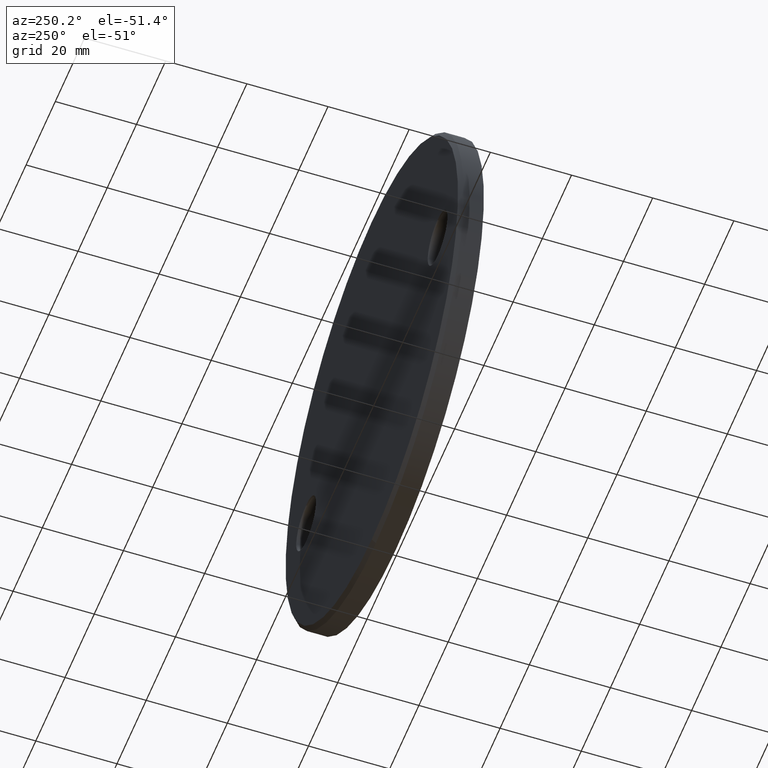
[diagram: clean part render]
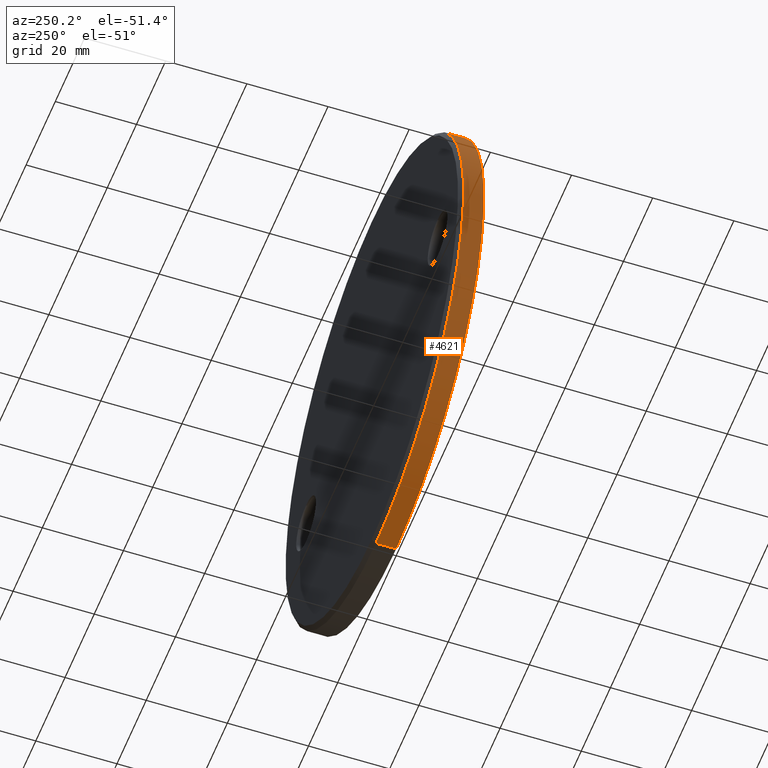
[diagram: same view with one face highlighted and labeled with its STEP entity id]
A machine part, auxiliary view. The second image highlights one B-rep face of the part: STEP entity #4621.
In plain terms, the highlighted cylindrical surface (partial cylindrical patch) has radius 60 mm, axis along (-0, -1, -0).
Its self-contained STEP definition (entity closure, byte-faithful):
#123 = ORIENTED_EDGE ( 'NONE', *, *, #4587, .T. ) ;
#803 = DIRECTION ( 'NONE',  ( -0.000000000000000000, -1.000000000000000000, -0.000000000000000000 ) ) ;
#856 = DIRECTION ( 'NONE',  ( 0.000000000000000000, 0.000000000000000000, 1.000000000000000000 ) ) ;
#872 = CARTESIAN_POINT ( 'NONE',  ( 7.347880794884118356E-15, 0.000000000000000000, 60.00000000000000000 ) ) ;
#1559 = EDGE_LOOP ( 'NONE', ( #1956, #123, #7882, #12647 ) ) ;
#1712 = LINE ( 'NONE', #13742, #7545 ) ;
#1956 = ORIENTED_EDGE ( 'NONE', *, *, #13268, .F. ) ;
#2452 = CARTESIAN_POINT ( 'NONE',  ( 7.347880794884118356E-15, 4.999999999999971578, 60.00000000000000000 ) ) ;
#2843 = DIRECTION ( 'NONE',  ( 0.000000000000000000, 0.000000000000000000, -1.000000000000000000 ) ) ;
#3694 = CARTESIAN_POINT ( 'NONE',  ( 0.000000000000000000, 6.000000000000000000, -60.00000000000000000 ) ) ;
#4191 = VERTEX_POINT ( 'NONE', #12299 ) ;
#4497 = VERTEX_POINT ( 'NONE', #2452 ) ;
#4587 = EDGE_CURVE ( 'NONE', #4497, #5758, #11359, .T. ) ;
#4621 = ADVANCED_FACE ( 'NONE', ( #8539 ), #6362, .T. ) ;
#4935 = CARTESIAN_POINT ( 'NONE',  ( 0.000000000000000000, 0.000000000000000000, 0.000000000000000000 ) ) ;
#5758 = VERTEX_POINT ( 'NONE', #13012 ) ;
#5859 = AXIS2_PLACEMENT_3D ( 'NONE', #4935, #13470, #5939 ) ;
#5939 = DIRECTION ( 'NONE',  ( 0.000000000000000000, 0.000000000000000000, 1.000000000000000000 ) ) ;
#6362 = CYLINDRICAL_SURFACE ( 'NONE', #13190, 60.00000000000000000 ) ;
#6893 = LINE ( 'NONE', #3694, #10411 ) ;
#7080 = DIRECTION ( 'NONE',  ( 0.000000000000000000, -1.000000000000000000, 0.000000000000000000 ) ) ;
#7172 = CARTESIAN_POINT ( 'NONE',  ( 0.000000000000000000, 6.000000000000000000, 0.000000000000000000 ) ) ;
#7545 = VECTOR ( 'NONE', #8387, 1000.000000000000000 ) ;
#7882 = ORIENTED_EDGE ( 'NONE', *, *, #10737, .T. ) ;
#8387 = DIRECTION ( 'NONE',  ( -0.000000000000000000, -1.000000000000000000, -0.000000000000000000 ) ) ;
#8539 = FACE_OUTER_BOUND ( 'NONE', #1559, .T. ) ;
#8893 = AXIS2_PLACEMENT_3D ( 'NONE', #9252, #7080, #856 ) ;
#8950 = EDGE_CURVE ( 'NONE', #4191, #11910, #9447, .T. ) ;
#9252 = CARTESIAN_POINT ( 'NONE',  ( 0.000000000000000000, 4.999999999999971578, 0.000000000000000000 ) ) ;
#9447 = CIRCLE ( 'NONE', #5859, 60.00000000000000000 ) ;
#10411 = VECTOR ( 'NONE', #12270, 1000.000000000000000 ) ;
#10737 = EDGE_CURVE ( 'NONE', #5758, #4191, #6893, .T. ) ;
#11359 = CIRCLE ( 'NONE', #8893, 60.00000000000000000 ) ;
#11910 = VERTEX_POINT ( 'NONE', #872 ) ;
#12270 = DIRECTION ( 'NONE',  ( -0.000000000000000000, -1.000000000000000000, -0.000000000000000000 ) ) ;
#12299 = CARTESIAN_POINT ( 'NONE',  ( 0.000000000000000000, 0.000000000000000000, -60.00000000000000000 ) ) ;
#12647 = ORIENTED_EDGE ( 'NONE', *, *, #8950, .T. ) ;
#13012 = CARTESIAN_POINT ( 'NONE',  ( 0.000000000000000000, 4.999999999999971578, -60.00000000000000000 ) ) ;
#13190 = AXIS2_PLACEMENT_3D ( 'NONE', #7172, #803, #2843 ) ;
#13268 = EDGE_CURVE ( 'NONE', #4497, #11910, #1712, .T. ) ;
#13470 = DIRECTION ( 'NONE',  ( 0.000000000000000000, 1.000000000000000000, 0.000000000000000000 ) ) ;
#13742 = CARTESIAN_POINT ( 'NONE',  ( 7.347880794884118356E-15, 6.000000000000000000, 60.00000000000000000 ) ) ;